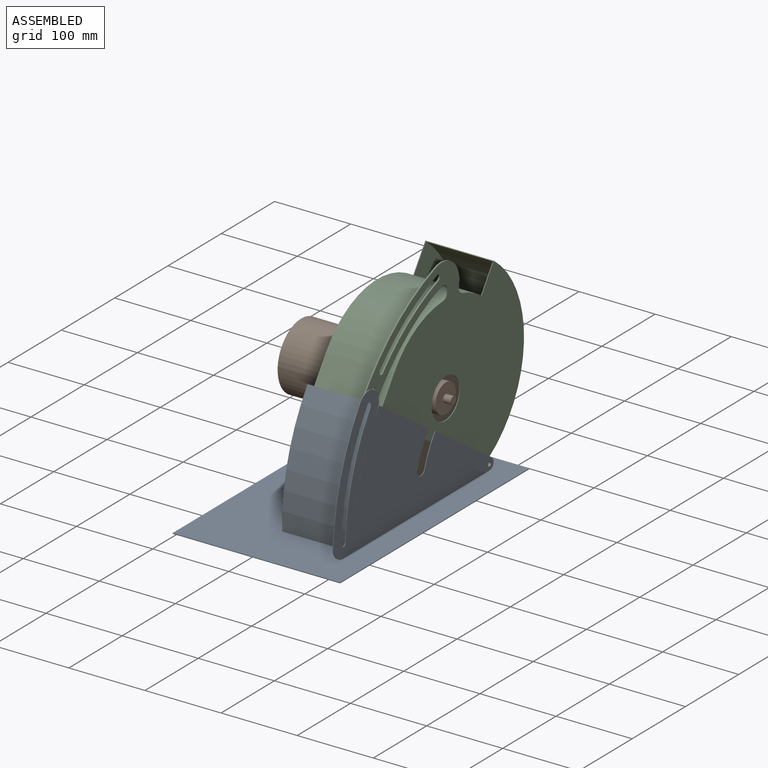
[diagram: assembled view]
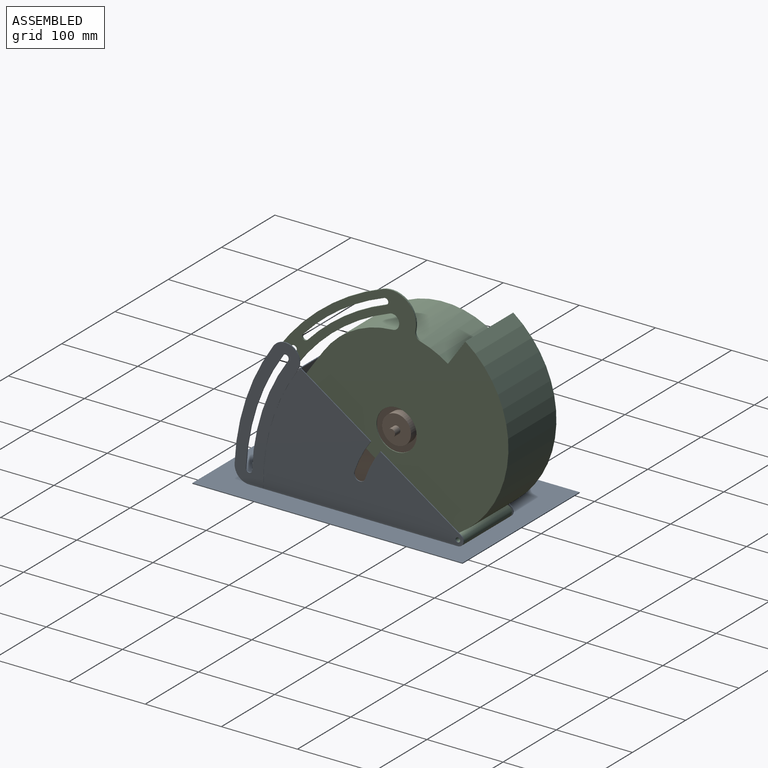
[diagram: assembled view, second angle]
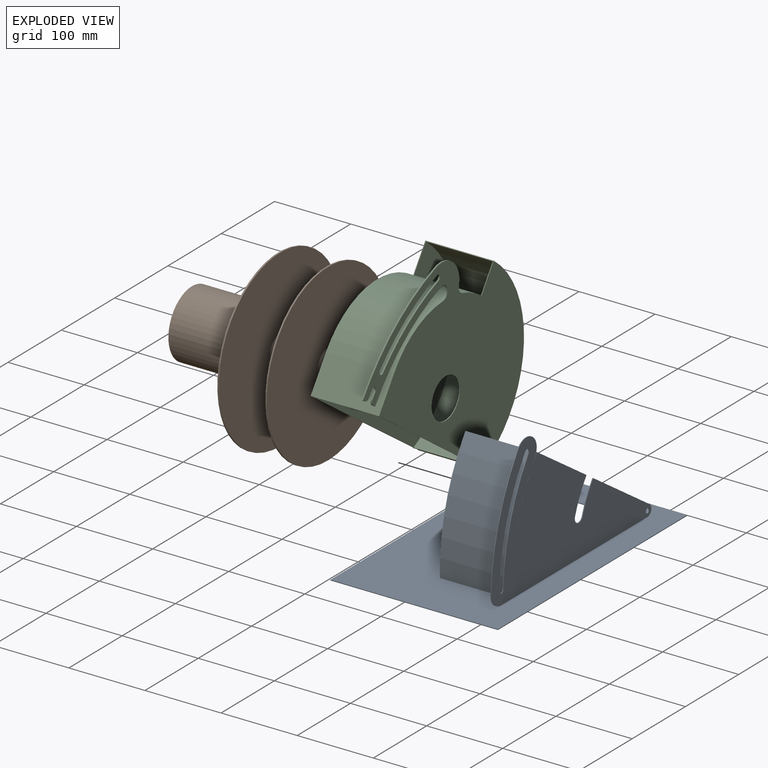
[diagram: exploded view]
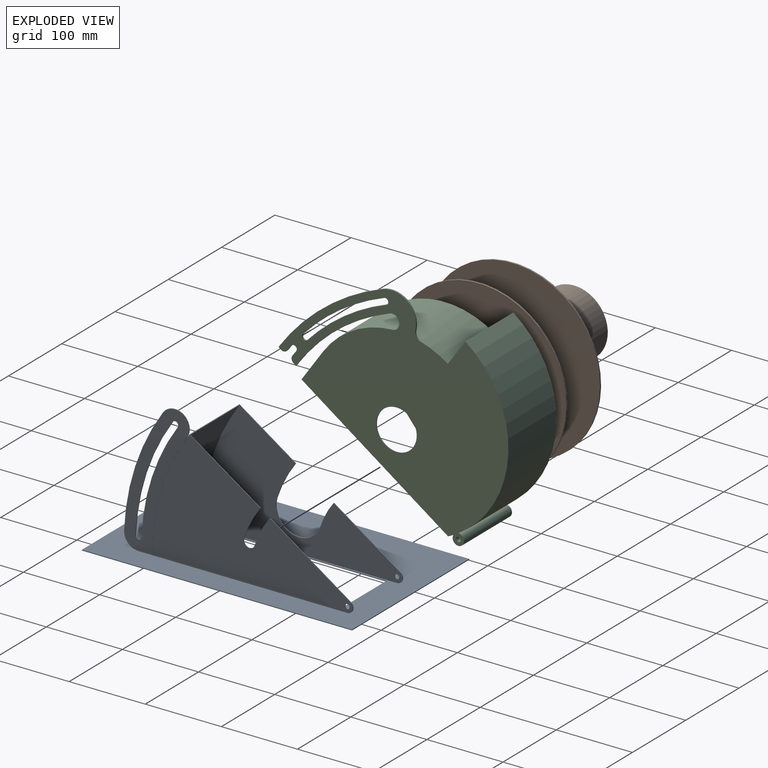
[diagram: exploded view, second angle]
ASSEMBLY  parts=3 mates=2
PART A: 39 faces, bbox 220x354.9x182.2 mm
  f0: plane 354.87x220mm, normal (0,0,1), area 56153.4mm2, adj f1,f2,f3,f4,f6,f7,f8,f10
  f1: plane 220x1mm, normal (0,-1,0), area 220mm2, adj f0,f2,f8,f9
  f2: plane 354.87x1mm, normal (-1,0,0), area 354.9mm2, adj f0,f1,f3,f9
  f3: plane 220x1mm, normal (0,1,0), area 220mm2, adj f0,f2,f8,f9
  f4: plane 242x1mm, normal (1,0,0), area 242mm2, adj f0,f5,f7,f9
  f5: plane 88x1mm, normal (0,1,0), area 88mm2, adj f4,f6,f9,f19
  f6: plane 242x1mm, normal (-1,0,0), area 242mm2, adj f0,f5,f7,f9
  f7: plane 88x1mm, normal (0,-1,0), area 88mm2, adj f0,f4,f6,f9
  f8: plane 354.87x1mm, normal (1,0,0), area 354.9mm2, adj f0,f1,f3,f9
  f9: plane 354.87x220mm, normal (0,0,-1), area 56774.9mm2, adj f1,f2,f3,f4,f5,f6,f7,f8
  f10: plane 261.92x155.93mm, normal (-1,0,0), area 22304.8mm2, adj f0,f11,f12,f13,f14,f15,f16,f17
  f11: cylinder r=7.5mm len=13.72mm, axis (1,0,0), area 19.1mm2, adj f0,f10,f12,f18
  f12: plane 106.05x71.53mm, normal (0,0.56,0.83), area 127.9mm2, adj f10,f11,f13,f18
  f13: cylinder r=128.14mm len=37.6mm, axis (1,0,0), area 42.7mm2, adj f10,f12,f14,f18
  f14: cylinder r=7.5mm len=14.62mm, axis (1,0,0), area 23.6mm2, adj f10,f13,f15,f18
  f15: cylinder r=143.14mm len=41.3mm, axis (1,0,0), area 46.8mm2, adj f10,f14,f16,f18
  f16: plane 94x93.16mm, normal (0,0.56,0.83), area 294.2mm2, adj f10,f15,f18,f19,f20,f25,f26,f28
  f17: cylinder r=3mm len=6mm, axis (1,0,0), area 18.8mm2, adj f10,f18
  f18: plane 262.92x156.48mm, normal (1,0,0), area 22471mm2, adj f0,f11,f12,f13,f14,f15,f16,f17
  f19: cylinder r=254.42mm len=155.93mm, axis (1,0,0), area 15269.9mm2, adj f0,f5,f10,f16,f25
  f20: plane 262.92x156.48mm, normal (-1,0,0), area 19131.2mm2, adj f0,f16,f21,f22,f23,f24,f26,f27
  f21: cylinder r=7.5mm len=13.72mm, axis (1,0,0), area 19.1mm2, adj f0,f20,f22,f25
  f22: plane 87.36x58.92mm, normal (0,0.56,0.83), area 105.4mm2, adj f20,f21,f23,f25
  f23: cylinder r=105.64mm len=32.04mm, axis (1,0,0), area 36.5mm2, adj f20,f22,f24,f25
  f24: cylinder r=30mm len=58.49mm, axis (1,0,0), area 94.2mm2, adj f20,f23,f25,f26
  f25: plane 261.92x155.93mm, normal (1,0,0), area 18965mm2, adj f0,f16,f19,f21,f22,f23,f24,f26
  f26: cylinder r=165.64mm len=46.85mm, axis (1,0,0), area 53mm2, adj f16,f20,f24,f25
  f27: cylinder r=3mm len=6mm, axis (1,0,0), area 18.8mm2, adj f20,f25
  f28: cylinder r=255.42mm len=156.48mm, axis (1,0,0), area 15657.7mm2, adj f0,f16,f18,f20
  f29: cylinder r=255.52mm len=151.54mm, axis (1,0,0), area 160.5mm2, adj f0,f30,f37,f38
  f30: cylinder r=18.99mm len=34.68mm, axis (1,0,0), area 59.7mm2, adj f29,f31,f37,f38
  f31: cylinder r=293.5mm len=153.17mm, axis (1,0,0), area 163.5mm2, adj f30,f32,f37,f38
  f32: cylinder r=18.99mm len=19.79mm, axis (1,0,0), area 30.6mm2, adj f0,f31,f37,f38
  f33: cylinder r=278.51mm len=147.19mm, axis (1,0,0), area 157.2mm2, adj f34,f36,f37,f38
  f34: cylinder r=4mm len=7.29mm, axis (1,0,0), area 12.6mm2, adj f33,f35,f37,f38
  f35: cylinder r=270.51mm len=142.96mm, axis (1,0,0), area 152.6mm2, adj f34,f36,f37,f38
  f36: cylinder r=4mm len=7.99mm, axis (1,0,0), area 12.6mm2, adj f33,f35,f37,f38
  f37: plane 181.24x85.52mm, normal (-1,0,0), area 5726.5mm2, adj f0,f29,f30,f31,f32,f33,f34,f35
  f38: plane 181.24x85.52mm, normal (1,0,0), area 5726.5mm2, adj f0,f29,f30,f31,f32,f33,f34,f35
PART B: 23 faces, bbox 200x230x230 mm
  f0: plane 88x88mm, normal (-1,0,0), area 6082.1mm2, adj f1
  f1: cylinder r=44mm len=88mm, axis (-1,0,0), area 22116.8mm2, adj f0,f2
  f2: plane 88x88mm, normal (1,0,0), area 3900.8mm2, adj f1,f3
  f3: cylinder r=26.35mm len=52.7mm, axis (-1,0,0), area 745mm2, adj f2,f4
  f4: plane 52.7x52.7mm, normal (1,0,0), area 295.5mm2, adj f3,f5
  f5: cylinder r=24.5mm len=49mm, axis (-1,0,0), area 769.7mm2, adj f4,f6
  f6: plane 52.7x52.7mm, normal (-1,0,0), area 295.5mm2, adj f5,f7
  f7: cylinder r=26.35mm len=52.7mm, axis (-1,0,0), area 745mm2, adj f6,f8
  f8: plane 52.7x52.7mm, normal (1,0,0), area 1811.4mm2, adj f7,f9
  f9: cylinder r=10.85mm len=21.7mm, axis (-1,0,0), area 1022.6mm2, adj f8,f10
  f10: plane 41x41mm, normal (-1,0,0), area 950.4mm2, adj f9,f11
  f11: cylinder r=20.5mm len=41mm, axis (-1,0,0), area 644mm2, adj f10,f16
  f12: cylinder r=19mm len=61mm, axis (-1,0,0), area 7282.2mm2, adj f13,f18
  f13: plane 230x230mm, normal (-1,0,0), area 40413.4mm2, adj f12,f14
  f14: cylinder r=115mm len=230mm, axis (-1,0,0), area 1445.1mm2, adj f13,f15
  f15: plane 230x230mm, normal (1,0,0), area 40413.4mm2, adj f14,f22
  f16: plane 230x230mm, normal (-1,0,0), area 40227.3mm2, adj f11,f17
  f17: cylinder r=115mm len=230mm, axis (-1,0,0), area 1445.1mm2, adj f16,f18
  f18: plane 230x230mm, normal (1,0,0), area 40413.4mm2, adj f12,f17
  f19: plane 10x10mm, normal (1,0,0), area 78.5mm2, adj f20
  f20: cylinder r=5mm len=10mm, axis (-1,0,0), area 314.2mm2, adj f19,f21
  f21: plane 38x38mm, normal (1,0,0), area 1055.6mm2, adj f20,f22
  f22: cylinder r=19mm len=38mm, axis (-1,0,0), area 1313.2mm2, adj f15,f21
PART C: 43 faces, bbox 110x296x208 mm
  f0: cylinder r=26.5mm len=53mm, axis (-1,0,0), area 3496.6mm2, adj f1,f5
  f1: plane 57x57mm, normal (-1,0,0), area 345.6mm2, adj f0,f2
  f2: cylinder r=28.5mm len=57mm, axis (-1,0,0), area 3581.4mm2, adj f1,f6
  f3: plane 39x1mm, normal (0,-1,0), area 39mm2, adj f5,f6,f13,f40
  f4: plane 234x90mm, normal (0,0,-1), area 556mm2, adj f5,f6,f7,f10,f11,f16,f39
  f5: plane 251.26x206.5mm, normal (1,0,0), area 37621.3mm2, adj f0,f3,f4,f7,f8,f14,f15
  f6: plane 253.81x208mm, normal (-1,0,0), area 37939.3mm2, adj f2,f3,f4,f13,f16,f37,f38,f39
  f7: plane 88x50mm, normal (0,1,0), area 4400mm2, adj f4,f5,f11,f15
  f8: cylinder r=137.95mm len=206.5mm, axis (-1,0,0), area 25104.7mm2, adj f5,f11,f39,f40
  f9: plane 39x1mm, normal (0,-1,0), area 39mm2, adj f10,f11,f13,f40
  f10: plane 296.01x208mm, normal (1,0,0), area 43061.9mm2, adj f4,f9,f12,f13,f16,f17,f18,f19
  f11: plane 251.26x206.5mm, normal (-1,0,0), area 37621.3mm2, adj f4,f7,f8,f9,f12,f14,f15
  f12: cylinder r=26.5mm len=53mm, axis (-1,0,0), area 166.5mm2, adj f10,f11
  f13: cylinder r=117.5mm len=117.5mm, axis (-1,0,0), area 16537.7mm2, adj f3,f6,f9,f10,f14,f16,f27,f28
  f14: plane 88x1mm, normal (0,1,0), area 88mm2, adj f5,f11,f13,f15
  f15: cylinder r=116.5mm len=116.5mm, axis (-1,0,0), area 16103.8mm2, adj f5,f7,f11,f14
  f16: plane 90x50mm, normal (0,-1,0), area 4500mm2, adj f4,f6,f10,f13
  f17: cylinder r=4mm len=7.3mm, axis (1,0,0), area 25.1mm2, adj f10,f18,f35,f36
  f18: cylinder r=270.51mm len=116.46mm, axis (1,0,0), area 252.1mm2, adj f10,f17,f19,f36
  f19: cylinder r=4mm len=7.96mm, axis (1,0,0), area 25.1mm2, adj f10,f18,f35,f36
  f20: cylinder r=4mm len=7.99mm, axis (1,0,0), area 25.1mm2, adj f10,f21,f34,f36
  f21: cylinder r=270.51mm len=8.14mm, axis (1,0,0), area 16.3mm2, adj f10,f20,f22,f36
  f22: cylinder r=6mm len=6.14mm, axis (1,0,0), area 19.1mm2, adj f10,f21,f23,f36
  f23: plane 3.93x2mm, normal (0,0,-1), area 7.9mm2, adj f10,f22,f24,f36
  f24: cylinder r=260.51mm len=148.74mm, axis (1,0,0), area 316.6mm2, adj f10,f23,f25,f36
  f25: cylinder r=9mm len=14.9mm, axis (1,0,0), area 35.1mm2, adj f10,f24,f26,f36
  f26: plane 2x0.83mm, normal (0,-0.83,-0.55), area 2mm2, adj f10,f25,f27,f36
  f27: cylinder r=9mm len=12.1mm, axis (1,0,0), area 27mm2, adj f10,f13,f26,f36
  f28: cylinder r=9mm len=11.27mm, axis (1,0,0), area 27mm2, adj f10,f13,f29,f36
  f29: plane 2x1.2mm, normal (0,0.92,0.4), area 2.6mm2, adj f10,f28,f30,f36
  f30: cylinder r=32.69mm len=56.76mm, axis (1,0,0), area 138.6mm2, adj f10,f29,f31,f36
  f31: cylinder r=288.51mm len=164.73mm, axis (1,0,0), area 350.6mm2, adj f10,f30,f32,f36
  f32: plane 4.06x2mm, normal (0,0,-1), area 8.1mm2, adj f10,f31,f33,f36
  f33: cylinder r=6mm len=6mm, axis (1,0,0), area 18.6mm2, adj f10,f32,f34,f36
  f34: cylinder r=278.51mm len=8.83mm, axis (1,0,0), area 17.7mm2, adj f10,f20,f33,f36
  f35: cylinder r=278.51mm len=119.9mm, axis (1,0,0), area 259.5mm2, adj f10,f17,f19,f36
  f36: plane 178.75x120.2mm, normal (-1,0,0), area 4777.1mm2, adj f13,f17,f18,f19,f20,f21,f22,f23
  f37: cylinder r=138.95mm len=90mm, axis (-1,0,0), area 757.9mm2, adj f6,f10,f39,f41
  f38: cylinder r=138.95mm len=193.93mm, axis (-1,0,0), area 24445.2mm2, adj f6,f10,f40,f41
  f39: plane 90x0.87mm, normal (0,-0.5,-0.87), area 90mm2, adj f4,f6,f8,f10,f37
  f40: plane 90x1mm, normal (0,-1,0.02), area 90mm2, adj f3,f6,f8,f9,f10,f38
  f41: cylinder r=7.5mm len=90mm, axis (-1,0,0), area 3553.6mm2, adj f6,f10,f37,f38
  f42: cylinder r=3mm len=90mm, axis (-1,0,0), area 1696.5mm2, adj f6,f10
PLACE A t=(-4.45,27.23,37.78)mm fixed
PLACE B rot(axis=(-1,0,0),35deg) t=(-3.45,74.9,103.97)mm
PLACE C rot(axis=(-1,0,0),35deg) t=(-3.45,74.9,103.97)mm
MATE revolute C.f18 <-> A.f29  axis (1,0,0) through (92.55,156.04,-4.72)mm
MATE fastened B.f1 <-> C.f0  axis (-1,0,0) through (-17.45,74.9,103.97)mm
